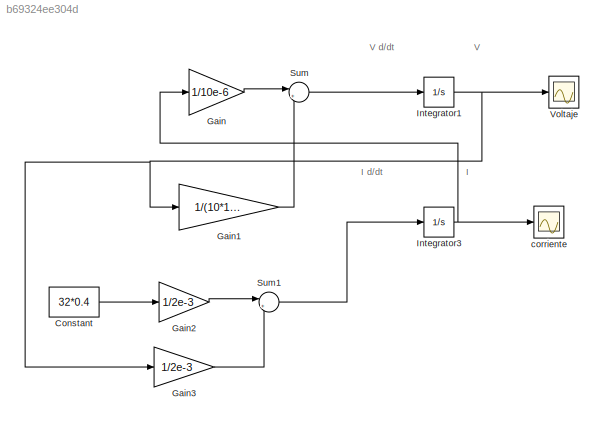
MODEL slx_b69324ee304d
KIND model
CONFIG AbsTol = auto
CONFIG EnableMultiTasking = off
CONFIG FixedStep = auto
CONFIG MaxStep = auto
CONFIG MinStep = auto
CONFIG RelTol = 1e-9
CONFIG SampleTimeConstraint = Unconstrained
CONFIG SolverName = VariableStepAuto
CONFIG StartTime = 0.0
CONFIG StopTime = 0.01
BLOCK [Constant] Constant
  Value = 32*0.4
BLOCK [Gain] Gain
  Gain = 1/10e-6
BLOCK [Gain] Gain1
  Gain = 1/(10*10e-6)
BLOCK [Gain] Gain2
  Gain = 1/2e-3
BLOCK [Gain] Gain3
  Gain = 1/2e-3
BLOCK [Integrator] Integrator1
BLOCK [Integrator] Integrator3
BLOCK [Sum] Sum
  Inputs = |+-
BLOCK [Sum] Sum1
  Inputs = |+-
BLOCK [Scope] Voltaje
  Floating = off
  NumInputPorts = 1
  ScopeSpecificationString = Simulink.scopes.TimeScopeBlockCfg('CurrentConfiguration', extmgr.ConfigurationSet(extmgr.Configuration('Core','General UI',true),extmgr.Configuration('Core','Source UI',true),extmgr.Configuration('Sources','WiredSimulink',true),extmgr.Configuration('Visuals','Time Domain',true,'SerializedDisplays',{struct('MinYLimReal','-1.66913','MaxYLimReal','15.02213','YLabelReal','','MinYLimMag','0.00000','Max...<+1485ch>
BLOCK [Scope] corriente
  Floating = off
  NumInputPorts = 1
  ScopeSpecificationString = Simulink.scopes.TimeScopeBlockCfg('CurrentConfiguration', extmgr.ConfigurationSet(extmgr.Configuration('Core','General UI',true),extmgr.Configuration('Core','Source UI',true),extmgr.Configuration('Sources','WiredSimulink',true,'DataLoggingVariableName','ScopeData1'),extmgr.Configuration('Visuals','Time Domain',true,'SerializedDisplays',{struct('MinYLimReal','-0.17072','MaxYLimReal','1.5365','YLabe...<+1455ch>
ANNOTATION (root): I
ANNOTATION (root): I d/dt
ANNOTATION (root): V
ANNOTATION (root): V d/dt
LINE Constant:1 -> Gain2:1
LINE Gain1:1 -> Sum:2
LINE Gain2:1 -> Sum1:1
LINE Gain3:1 -> Sum1:2
LINE Gain:1 -> Sum:1
NET Integrator1:1 -> Gain1:1, Gain3:1, Voltaje:1
NET Integrator3:1 -> Gain:1, corriente:1
LINE Sum1:1 -> Integrator3:1
LINE Sum:1 -> Integrator1:1
note: NET lines group one-source signal fan-out (src -> all destinations, sorted); 1:1 wires keep LINE
